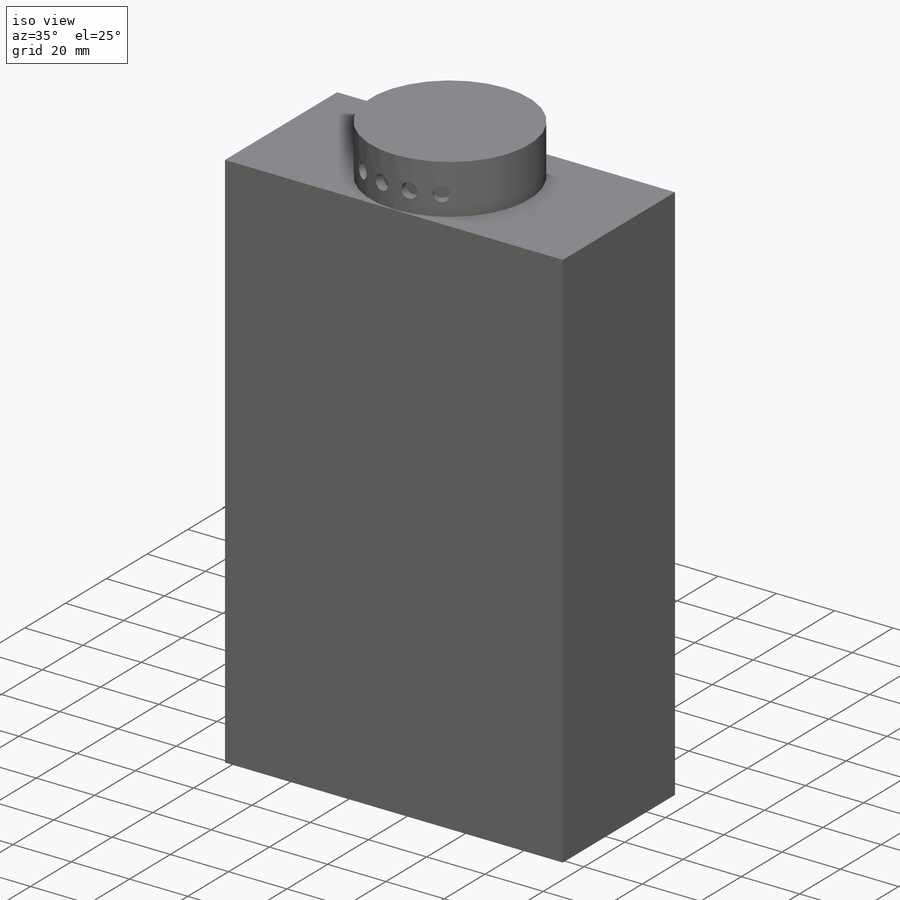
[diagram: iso view]
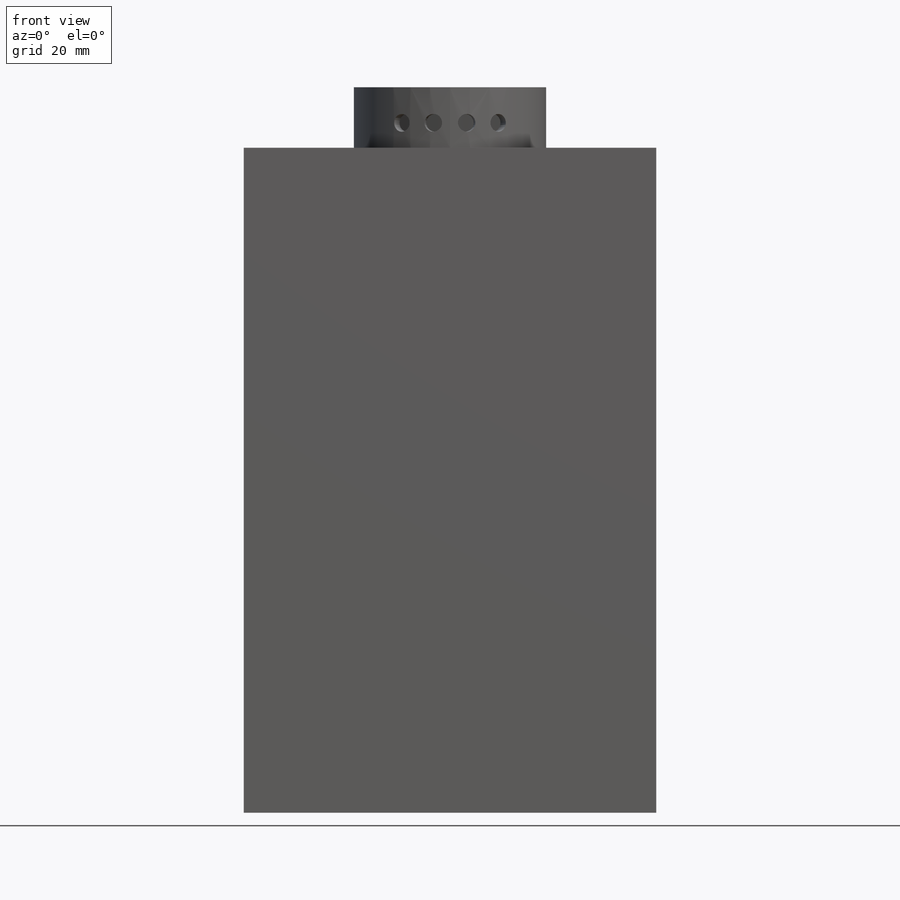
[diagram: front view]
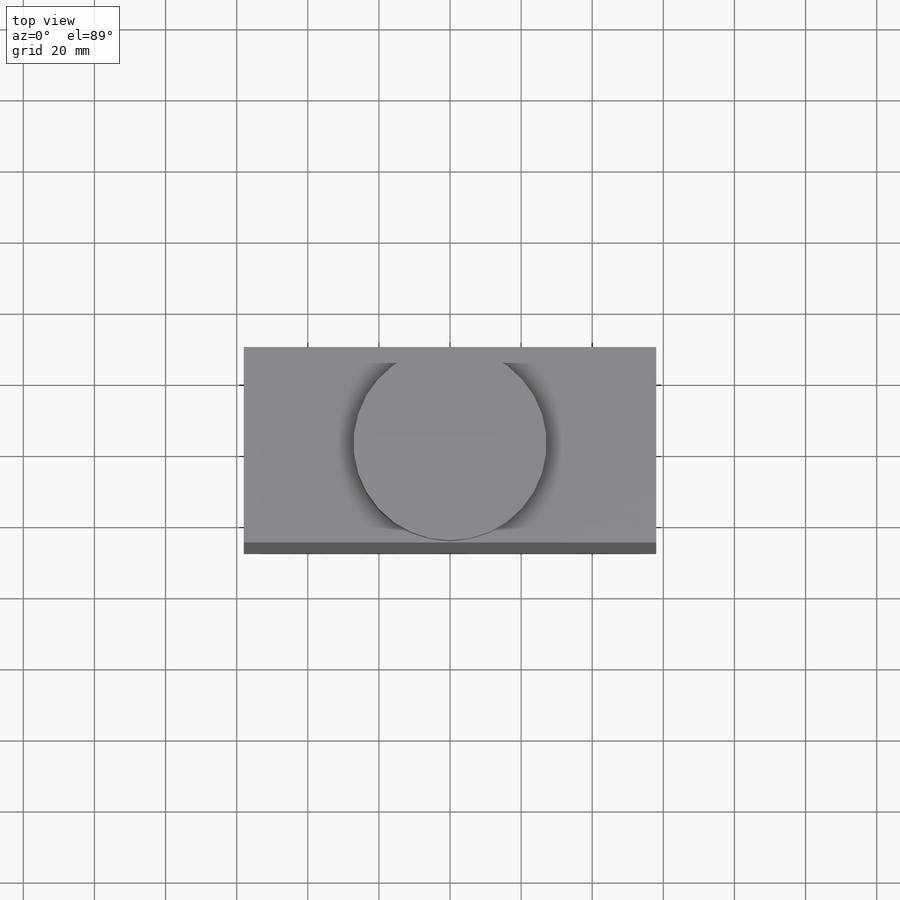
[diagram: top view]
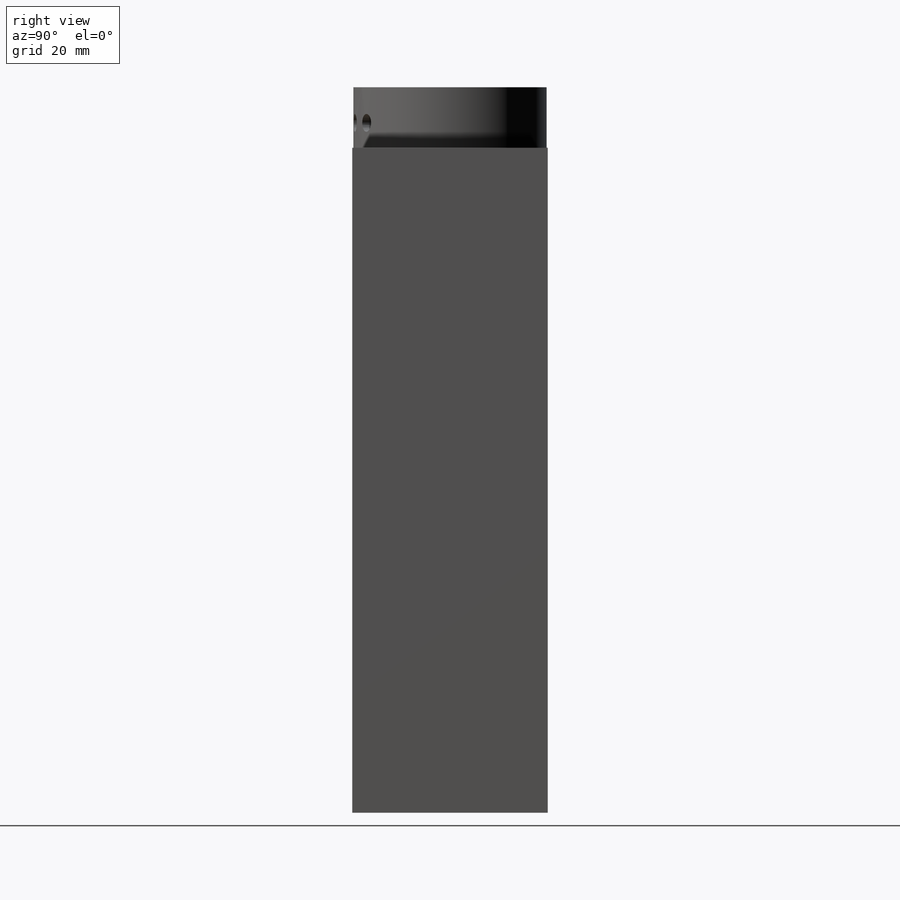
[diagram: right view]
SOLIDWORKS PART (.sldprt)
format: sldprt  version: not decoded by parser v0  size: 151,040 bytes
history: native  units: mm
features: sketch x3, extrude x2, material x1, plane x1, cut_revolve x1, pattern_circular x1 (+11 scaffold rows collapsed)
feature tree (20):
  scaffold x11  (default folders/planes/origin — collapsed)
  material  "Material <not specified>"
  sketch  "Sketch1"  dims[D1=116.0mm D2=55.0mm]
  extrude  "Boss-Extrude1"  Depth=187mm
  sketch  "Sketch2"
  extrude  "Boss-Extrude2"  Depth=17mm
  plane  "Plane1"  Offset=194mm
  sketch  "Sketch4"  dims[c1.D1=~42.429003mm c2.D1=30.0deg c2.D2=2.5mm]
  cut_revolve  "Cut-Revolve1"  Angle=360deg
  pattern_circular  "CirPattern1"  Count=4 Angle=60deg
decode coverage: 6 of 7 modeling features carry decoded parameters
note: ~ marks probable driven/reference dimensions
note: suppression state not decoded; provenance and decode notes live in map.json
